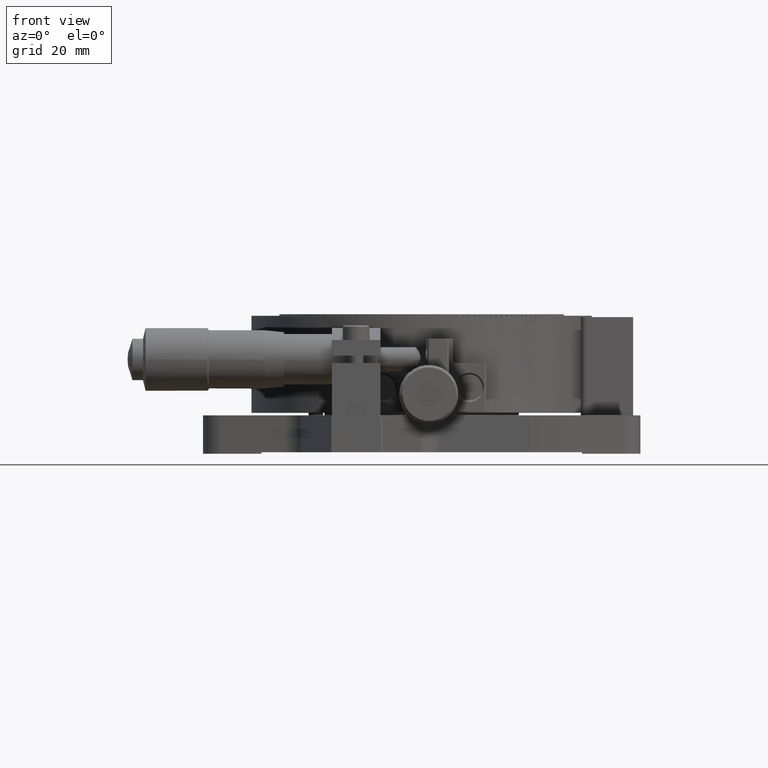
[diagram: clean part render]
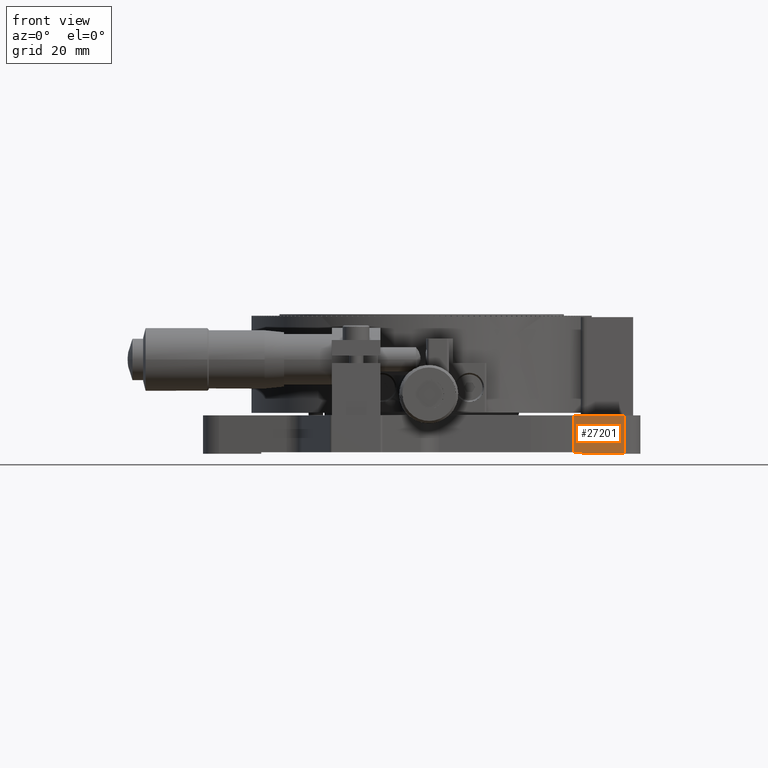
[diagram: same view with one face highlighted and labeled with its STEP entity id]
A machine part, front view. The second image highlights one B-rep face of the part: STEP entity #27201.
In plain terms, the highlighted face is a freeform B-spline surface patch.
Its self-contained STEP definition (entity closure, byte-faithful):
#27201=ADVANCED_FACE('',(#29531),#129659,.T.);
#29531=FACE_OUTER_BOUND('',#31900,.T.);
#31900=EDGE_LOOP('',(#35573,#35574,#35575,#35576,#35577,#35578));
#35573=ORIENTED_EDGE('',*,*,#85451,.T.);
#35574=ORIENTED_EDGE('',*,*,#85452,.T.);
#35575=ORIENTED_EDGE('',*,*,#85453,.T.);
#35576=ORIENTED_EDGE('',*,*,#85454,.T.);
#35577=ORIENTED_EDGE('',*,*,#85455,.T.);
#35578=ORIENTED_EDGE('',*,*,#85456,.T.);
#48247=PCURVE('',#129659,#60921);
#48248=PCURVE('',#129659,#60922);
#48249=PCURVE('',#129659,#60923);
#48250=PCURVE('',#129659,#60924);
#48251=PCURVE('',#129659,#60925);
#48252=PCURVE('',#129659,#60926);
#60921=DEFINITIONAL_REPRESENTATION('',(#98165),#230981);
#60922=DEFINITIONAL_REPRESENTATION('',(#98167),#230981);
#60923=DEFINITIONAL_REPRESENTATION('',(#98169),#230981);
#60924=DEFINITIONAL_REPRESENTATION('',(#98171),#230981);
#60925=DEFINITIONAL_REPRESENTATION('',(#98173),#230981);
#60926=DEFINITIONAL_REPRESENTATION('',(#98175),#230981);
#73351=SURFACE_CURVE('',#98164,(#48247),.PCURVE_S1.);
#73352=SURFACE_CURVE('',#98166,(#48248),.PCURVE_S1.);
#73353=SURFACE_CURVE('',#98168,(#48249),.PCURVE_S1.);
#73354=SURFACE_CURVE('',#98170,(#48250),.PCURVE_S1.);
#73355=SURFACE_CURVE('',#98172,(#48251),.PCURVE_S1.);
#73356=SURFACE_CURVE('',#98174,(#48252),.PCURVE_S1.);
#85451=EDGE_CURVE('',#118920,#118922,#73351,.T.);
#85452=EDGE_CURVE('',#118922,#118923,#73352,.T.);
#85453=EDGE_CURVE('',#118923,#118924,#73353,.T.);
#85454=EDGE_CURVE('',#118924,#118925,#73354,.T.);
#85455=EDGE_CURVE('',#118925,#118921,#73355,.T.);
#85456=EDGE_CURVE('',#118921,#118920,#73356,.T.);
#98164=B_SPLINE_CURVE_WITH_KNOTS('',1,(#146603,#146604),.UNSPECIFIED.,.F.,
 .F.,(2,2),(-1.70580429853035,0.),.UNSPECIFIED.);
#98165=B_SPLINE_CURVE_WITH_KNOTS('',1,(#146605,#146606),.UNSPECIFIED.,.F.,
 .F.,(2,2),(-1.70580429853035,0.),.UNSPECIFIED.);
#98166=B_SPLINE_CURVE_WITH_KNOTS('',1,(#146607,#146608),.UNSPECIFIED.,.F.,
 .F.,(2,2),(0.,0.300000000000001),.UNSPECIFIED.);
#98167=B_SPLINE_CURVE_WITH_KNOTS('',1,(#146609,#146610),.UNSPECIFIED.,.F.,
 .F.,(2,2),(0.,0.300000000000001),.UNSPECIFIED.);
#98168=B_SPLINE_CURVE_WITH_KNOTS('',1,(#146611,#146612),.UNSPECIFIED.,.F.,
 .F.,(2,2),(-8.84782961549905,0.),.UNSPECIFIED.);
#98169=B_SPLINE_CURVE_WITH_KNOTS('',1,(#146613,#146614),.UNSPECIFIED.,.F.,
 .F.,(2,2),(-8.84782961549905,0.),.UNSPECIFIED.);
#98170=B_SPLINE_CURVE_WITH_KNOTS('',1,(#146615,#146616),.UNSPECIFIED.,.F.,
 .F.,(2,2),(-7.9,0.),.UNSPECIFIED.);
#98171=B_SPLINE_CURVE_WITH_KNOTS('',1,(#146617,#146618),.UNSPECIFIED.,.F.,
 .F.,(2,2),(-7.9,0.),.UNSPECIFIED.);
#98172=B_SPLINE_CURVE_WITH_KNOTS('',1,(#146619,#146620),.UNSPECIFIED.,.F.,
 .F.,(2,2),(-10.5536339140294,0.),.UNSPECIFIED.);
#98173=B_SPLINE_CURVE_WITH_KNOTS('',1,(#146621,#146622),.UNSPECIFIED.,.F.,
 .F.,(2,2),(-10.5536339140294,0.),.UNSPECIFIED.);
#98174=B_SPLINE_CURVE_WITH_KNOTS('',1,(#146623,#146624),.UNSPECIFIED.,.F.,
 .F.,(2,2),(-7.6,0.),.UNSPECIFIED.);
#98175=B_SPLINE_CURVE_WITH_KNOTS('',1,(#146625,#146626),.UNSPECIFIED.,.F.,
 .F.,(2,2),(-7.6,0.),.UNSPECIFIED.);
#118920=VERTEX_POINT('',#146597);
#118921=VERTEX_POINT('',#146598);
#118922=VERTEX_POINT('',#146599);
#118923=VERTEX_POINT('',#146600);
#118924=VERTEX_POINT('',#146601);
#118925=VERTEX_POINT('',#146602);
#129659=B_SPLINE_SURFACE_WITH_KNOTS('',1,1,((#146593,#146594),(#146595,
#146596)),.UNSPECIFIED.,.F.,.F.,.F.,(2,2),(2,2),(-14.9955330788512,-2.24756382861964),
(-8.726,0.826000000000001),.UNSPECIFIED.);
#146593=CARTESIAN_POINT('',(75.2412962879581,-69.4045577897423,17.2693598283897));
#146594=CARTESIAN_POINT('',(75.2412962879581,-69.4045577897423,26.8213598283897));
#146595=CARTESIAN_POINT('',(87.7879326832813,-67.1478710218455,17.2693598283897));
#146596=CARTESIAN_POINT('',(87.7879326832813,-67.1478710218455,26.8213598283897));
#146597=CARTESIAN_POINT('',(76.3211360276185,-69.2103336188044,18.3953598283897));
#146598=CARTESIAN_POINT('',(76.3211360276185,-69.2103336188044,25.9953598283897));
#146599=CARTESIAN_POINT('',(77.9999999999999,-68.9083666220574,18.3953598283897));
#146600=CARTESIAN_POINT('',(77.9999999999999,-68.9083666220574,18.0953598283897));
#146601=CARTESIAN_POINT('',(86.7080929436209,-67.3420951927834,18.0953598283897));
#146602=CARTESIAN_POINT('',(86.7080929436209,-67.3420951927834,25.9953598283897));
#146603=CARTESIAN_POINT('',(76.3211360276185,-69.2103336188044,18.3953598283897));
#146604=CARTESIAN_POINT('',(77.9999999999999,-68.9083666220574,18.3953598283897));
#146605=CARTESIAN_POINT('',(-13.8983654107501,-7.6));
#146606=CARTESIAN_POINT('',(-12.1925611122198,-7.6));
#146607=CARTESIAN_POINT('',(77.9999999999999,-68.9083666220574,18.3953598283897));
#146608=CARTESIAN_POINT('',(77.9999999999999,-68.9083666220574,18.0953598283897));
#146609=CARTESIAN_POINT('',(-12.1925611122198,-7.6));
#146610=CARTESIAN_POINT('',(-12.1925611122198,-7.9));
#146611=CARTESIAN_POINT('',(77.9999999999999,-68.9083666220574,18.0953598283897));
#146612=CARTESIAN_POINT('',(86.7080929436209,-67.3420951927834,18.0953598283897));
#146613=CARTESIAN_POINT('',(-12.1925611122198,-7.9));
#146614=CARTESIAN_POINT('',(-3.34473149672072,-7.9));
#146615=CARTESIAN_POINT('',(86.7080929436209,-67.3420951927834,18.0953598283897));
#146616=CARTESIAN_POINT('',(86.7080929436209,-67.3420951927834,25.9953598283897));
#146617=CARTESIAN_POINT('',(-3.34473149672072,-7.9));
#146618=CARTESIAN_POINT('',(-3.34473149672072,-1.10262265980739E-29));
#146619=CARTESIAN_POINT('',(86.7080929436209,-67.3420951927834,25.9953598283897));
#146620=CARTESIAN_POINT('',(76.3211360276185,-69.2103336188044,25.9953598283897));
#146621=CARTESIAN_POINT('',(-3.34473149672072,-1.10262265980739E-29));
#146622=CARTESIAN_POINT('',(-13.8983654107501,-4.58172880280559E-29));
#146623=CARTESIAN_POINT('',(76.3211360276185,-69.2103336188044,25.9953598283897));
#146624=CARTESIAN_POINT('',(76.3211360276185,-69.2103336188044,18.3953598283897));
#146625=CARTESIAN_POINT('',(-13.8983654107501,-4.58172880280559E-29));
#146626=CARTESIAN_POINT('',(-13.8983654107501,-7.6));
#230981=(
GEOMETRIC_REPRESENTATION_CONTEXT(2)
PARAMETRIC_REPRESENTATION_CONTEXT()
REPRESENTATION_CONTEXT('pspace','')
);